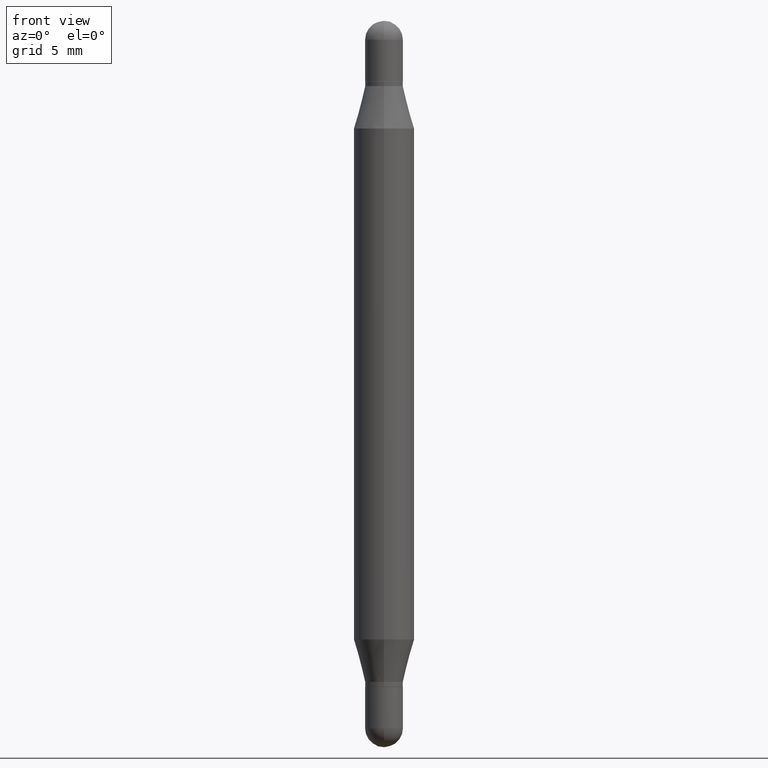
[diagram: clean part render]
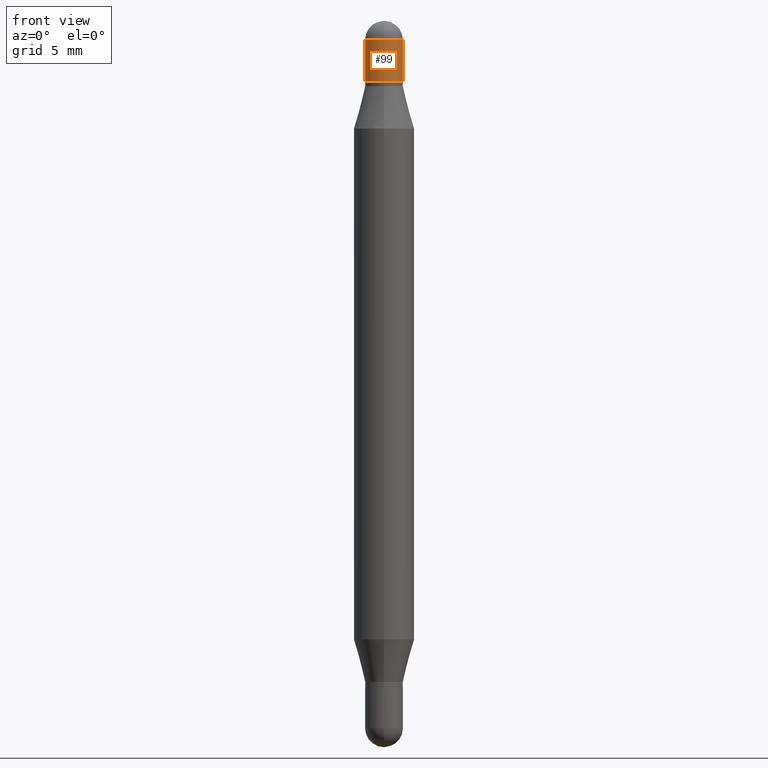
[diagram: same view with one face highlighted and labeled with its STEP entity id]
A machine part, front view. The second image highlights one B-rep face of the part: STEP entity #99.
In plain terms, the highlighted cylindrical surface (edge-blend (fillet) strip) has radius 0.9919 mm, axis along (-0, -0, -1).
Its self-contained STEP definition (entity closure, byte-faithful):
#27 = CARTESIAN_POINT ( 'NONE',  ( -2.679024468129425588E-16, -0.03905000000000014709, -0.03904999999999927279 ) ) ;
#75 = FACE_OUTER_BOUND ( 'NONE', #552, .T. ) ;
#99 = ADVANCED_FACE ( 'NONE', ( #75 ), #1109, .T. ) ;
#108 = AXIS2_PLACEMENT_3D ( 'NONE', #199, #795, #981 ) ;
#131 = DIRECTION ( 'NONE',  ( 1.000000000000000000, -6.982962677686265133E-15, 0.000000000000000000 ) ) ;
#140 = CARTESIAN_POINT ( 'NONE',  ( 0.03905000000000000138, -7.165366548348628306E-16, -0.1249999999999993477 ) ) ;
#144 = EDGE_CURVE ( 'NONE', #477, #647, #784, .T. ) ;
#145 = LINE ( 'NONE', #485, #154 ) ;
#154 = VECTOR ( 'NONE', #479, 39.37007874015748143 ) ;
#165 = CARTESIAN_POINT ( 'NONE',  ( 0.000000000000000000, -5.228321854365729194E-15, -1.499999999999999556 ) ) ;
#173 = CIRCLE ( 'NONE', #968, 0.03905000000000000832 ) ;
#199 = CARTESIAN_POINT ( 'NONE',  ( 3.572707652396175485E-29, -1.447790988344699412E-16, -0.03904999999999941157 ) ) ;
#211 = LINE ( 'NONE', #890, #760 ) ;
#237 = ORIENTED_EDGE ( 'NONE', *, *, #952, .T. ) ;
#245 = DIRECTION ( 'NONE',  ( -2.445468806185136597E-29, -3.479614466977828254E-15, -1.000000000000000000 ) ) ;
#256 = DIRECTION ( 'NONE',  ( 2.445468806185136597E-29, 3.479614466977828254E-15, 1.000000000000000000 ) ) ;
#259 = CARTESIAN_POINT ( 'NONE',  ( 3.362519608504562821E-29, -4.438519622712140631E-16, -0.1249999999999993477 ) ) ;
#373 = ORIENTED_EDGE ( 'NONE', *, *, #144, .F. ) ;
#379 = DIRECTION ( 'NONE',  ( -2.445468806185136877E-29, -3.479614466977828648E-15, -1.000000000000000000 ) ) ;
#388 = CARTESIAN_POINT ( 'NONE',  ( 0.03905000000000000832, -5.670002231164904615E-16, -0.03904999999999941157 ) ) ;
#398 = DIRECTION ( 'NONE',  ( 2.445468806185136597E-29, 3.479614466977828254E-15, 1.000000000000000000 ) ) ;
#401 = VERTEX_POINT ( 'NONE', #388 ) ;
#410 = CARTESIAN_POINT ( 'NONE',  ( -0.03905000000000000138, -2.641308373986373509E-17, -0.1249999999999993477 ) ) ;
#476 = ORIENTED_EDGE ( 'NONE', *, *, #695, .F. ) ;
#477 = VERTEX_POINT ( 'NONE', #860 ) ;
#479 = DIRECTION ( 'NONE',  ( -2.445468806185136877E-29, -3.479614466977828648E-15, -1.000000000000000000 ) ) ;
#485 = CARTESIAN_POINT ( 'NONE',  ( -0.03905000000000000832, -4.960419407552750298E-15, -1.499999999999999556 ) ) ;
#552 = EDGE_LOOP ( 'NONE', ( #373, #661, #237, #648, #476 ) ) ;
#639 = AXIS2_PLACEMENT_3D ( 'NONE', #165, #245, #131 ) ;
#647 = VERTEX_POINT ( 'NONE', #27 ) ;
#648 = ORIENTED_EDGE ( 'NONE', *, *, #806, .F. ) ;
#661 = ORIENTED_EDGE ( 'NONE', *, *, #712, .T. ) ;
#665 = DIRECTION ( 'NONE',  ( 1.000000000000000000, -6.982962677686266711E-15, 0.000000000000000000 ) ) ;
#695 = EDGE_CURVE ( 'NONE', #647, #401, #173, .T. ) ;
#712 = EDGE_CURVE ( 'NONE', #477, #916, #145, .T. ) ;
#742 = VERTEX_POINT ( 'NONE', #140 ) ;
#760 = VECTOR ( 'NONE', #379, 39.37007874015748143 ) ;
#784 = CIRCLE ( 'NONE', #108, 0.03905000000000000832 ) ;
#795 = DIRECTION ( 'NONE',  ( 2.445468806185136597E-29, 3.479614466977828254E-15, 1.000000000000000000 ) ) ;
#806 = EDGE_CURVE ( 'NONE', #401, #742, #211, .T. ) ;
#810 = AXIS2_PLACEMENT_3D ( 'NONE', #259, #256, #665 ) ;
#860 = CARTESIAN_POINT ( 'NONE',  ( -0.03905000000000000832, -2.641308373986340229E-17, -0.03904999999999941157 ) ) ;
#867 = CIRCLE ( 'NONE', #810, 0.03905000000000000138 ) ;
#890 = CARTESIAN_POINT ( 'NONE',  ( 0.03905000000000000832, -5.501006546929377518E-15, -1.499999999999999556 ) ) ;
#916 = VERTEX_POINT ( 'NONE', #410 ) ;
#920 = DIRECTION ( 'NONE',  ( 1.000000000000000000, -6.982962677686265133E-15, 0.000000000000000000 ) ) ;
#952 = EDGE_CURVE ( 'NONE', #916, #742, #867, .T. ) ;
#968 = AXIS2_PLACEMENT_3D ( 'NONE', #994, #398, #920 ) ;
#981 = DIRECTION ( 'NONE',  ( 1.000000000000000000, -6.982962677686265133E-15, 0.000000000000000000 ) ) ;
#994 = CARTESIAN_POINT ( 'NONE',  ( 3.572707652396175485E-29, -1.447790988344699412E-16, -0.03904999999999941157 ) ) ;
#1109 = CYLINDRICAL_SURFACE ( 'NONE', #639, 0.03905000000000000832 ) ;